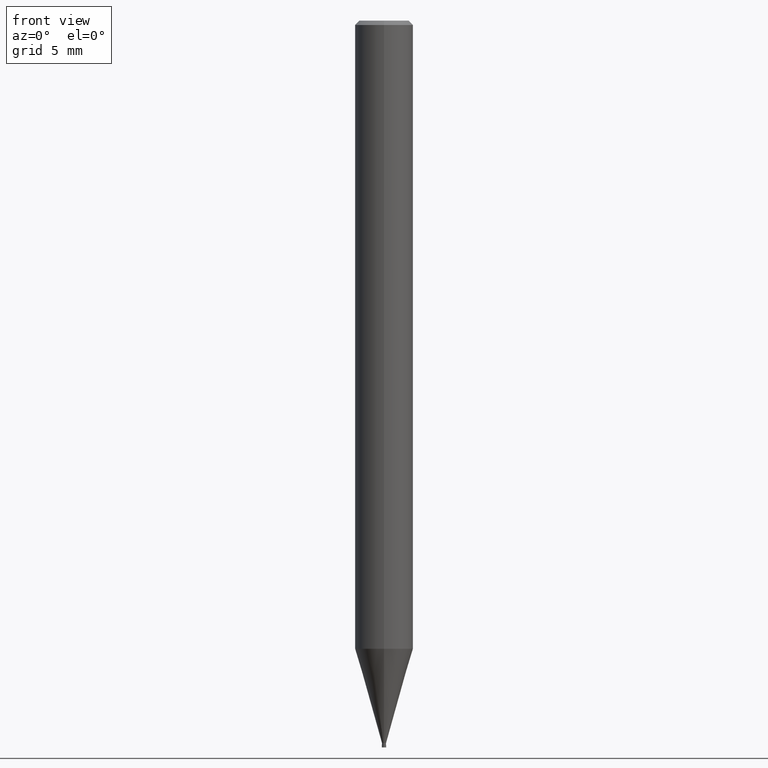
[diagram: clean part render]
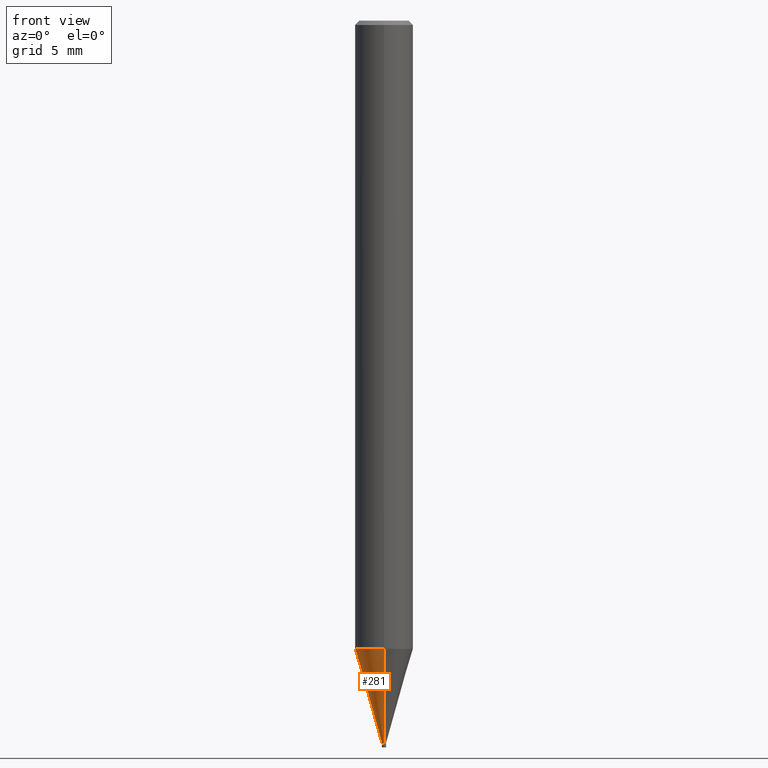
[diagram: same view with one face highlighted and labeled with its STEP entity id]
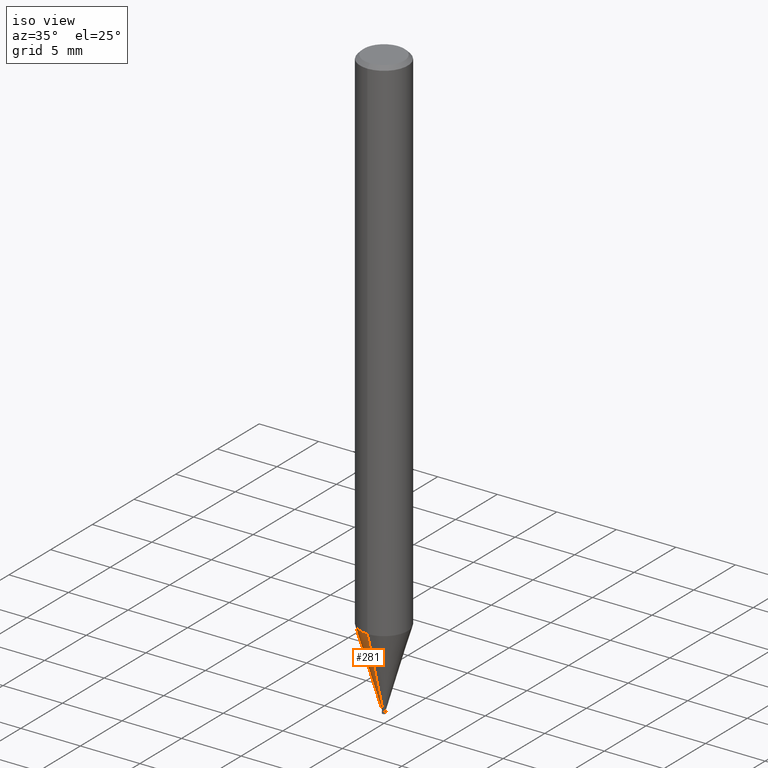
[diagram: same view with one face highlighted and labeled with its STEP entity id]
A machine part, front view. The second image highlights one B-rep face of the part: STEP entity #281.
A second angle (iso view) of the same face is appended — the face is thin or edge-on in the first view.
In plain terms, the highlighted conical surface has half-angle 15.999 deg.
Its self-contained STEP definition (entity closure, byte-faithful):
#181=EDGE_CURVE('',#329,#253,#421,.T.);
#185=EDGE_CURVE('',#329,#241,#426,.T.);
#193=VERTEX_POINT('',#434);
#241=VERTEX_POINT('',#489);
#253=VERTEX_POINT('',#501);
#281=ADVANCED_FACE('',(#535),#536,.T.);
#289=EDGE_CURVE('',#193,#241,#545,.T.);
#325=EDGE_CURVE('',#253,#193,#588,.T.);
#329=VERTEX_POINT('',#592);
#421=LINE('',#690,#691);
#426=CIRCLE('',#697,0.13995);
#434=CARTESIAN_POINT('',(0.0,1.99995,-43.203));
#489=CARTESIAN_POINT('',(0.0,0.13995,-49.69));
#501=CARTESIAN_POINT('',(2.44915147732706E-016,-1.99995,-43.203));
#535=FACE_OUTER_BOUND('',#836,.T.);
#536=CONICAL_SURFACE('',#837,1.06995,0.27923596926092);
#545=LINE('',#850,#851);
#588=CIRCLE('',#898,1.99995);
#592=CARTESIAN_POINT('',(1.71383659217442E-017,-0.13995,-49.69));
#690=CARTESIAN_POINT('',(1.31026756827225E-016,-1.06995,-46.4465));
#691=VECTOR('',#1000,1.0);
#697=AXIS2_PLACEMENT_3D('',#1009,#1010,#1011);
#836=EDGE_LOOP('',(#1142,#1143,#1144,#1145));
#837=AXIS2_PLACEMENT_3D('',#1146,#1147,#1148);
#850=CARTESIAN_POINT('',(-1.31026756827225E-016,1.06995,-46.4465));
#851=VECTOR('',#1161,1.0);
#898=AXIS2_PLACEMENT_3D('',#1227,#1228,#1229);
#1000=DIRECTION('',(3.37527585527933E-017,-0.275621292078393,0.961266301995986));
#1009=CARTESIAN_POINT('',(0.0,0.0,-49.69));
#1010=DIRECTION('',(0.0,0.0,-1.0));
#1011=DIRECTION('',(0.0,1.0,0.0));
#1142=ORIENTED_EDGE('',*,*,#289,.T.);
#1143=ORIENTED_EDGE('',*,*,#185,.F.);
#1144=ORIENTED_EDGE('',*,*,#181,.T.);
#1145=ORIENTED_EDGE('',*,*,#325,.T.);
#1146=CARTESIAN_POINT('',(0.0,0.0,-46.4465));
#1147=DIRECTION('',(-0.0,-0.0,1.0));
#1148=DIRECTION('',(0.0,1.0,0.0));
#1161=DIRECTION('',(3.37527585527933E-017,-0.275621292078393,-0.961266301995986));
#1227=CARTESIAN_POINT('',(0.0,0.0,-43.203));
#1228=DIRECTION('',(0.0,0.0,-1.0));
#1229=DIRECTION('',(0.0,1.0,0.0));